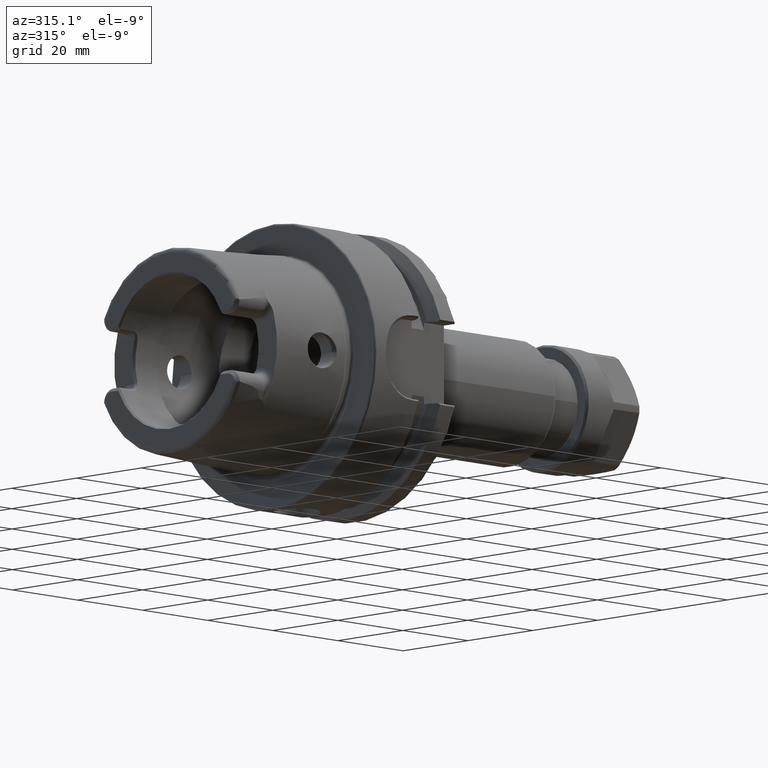
[diagram: clean part render]
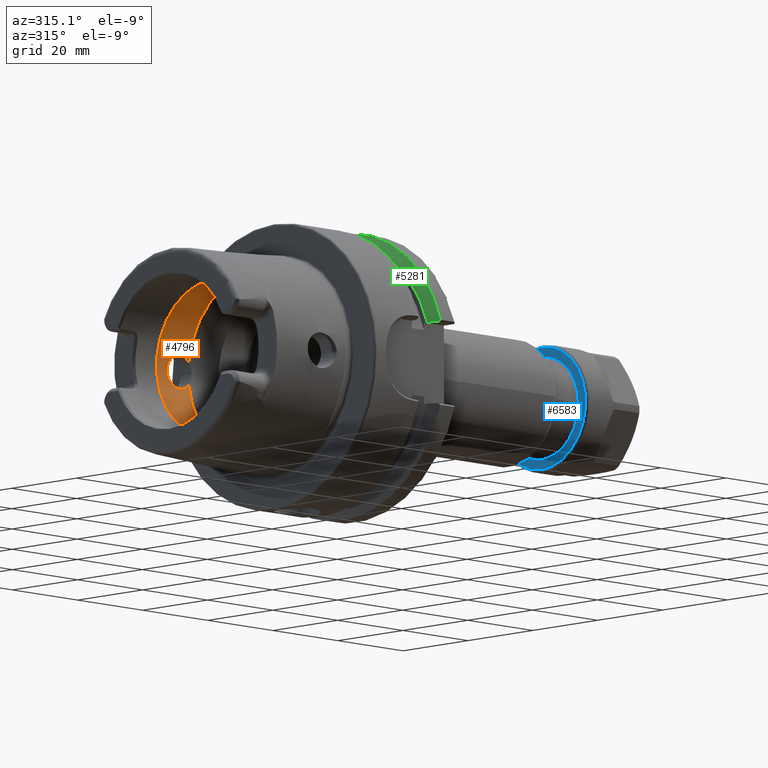
[diagram: same view with three faces highlighted in distinct colors, each labeled with its STEP entity id]
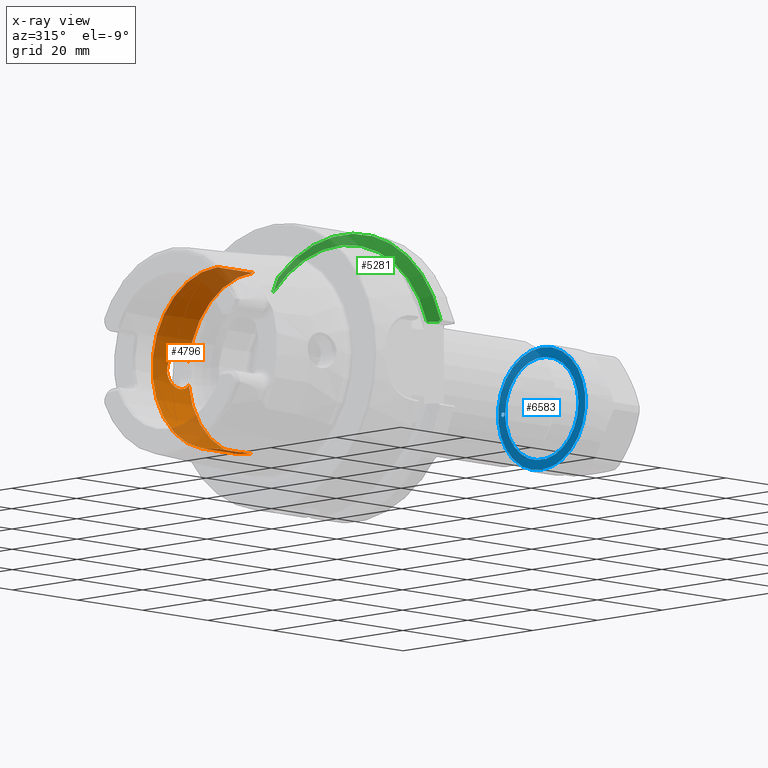
[diagram: x-ray of the same camera — body ghosted, the three highlighted faces saturated]
A machine part, auxiliary view with three faces highlighted in distinct colors.
The next image is the same camera in x-ray (body ghosted, the three faces saturated) — at least one of them is partly hidden behind the body in this view.
Their STEP definitions:

[orange] entity #4796 — the highlighted cylindrical surface (partial cylindrical patch) has radius 20 mm, axis along (1, 0, 0).
#1645=CARTESIAN_POINT('',(-6.25E0,1.983683432405E1,-2.549509756796E0));
#1646=CARTESIAN_POINT('',(-6.412191671914E0,1.981434953185E1,
-2.724455977957E0));
#1647=CARTESIAN_POINT('',(-6.766666943100E0,1.976875762141E1,
-3.043454715097E0));
#1648=CARTESIAN_POINT('',(-7.437180179155E0,1.970320763632E1,
-3.437875137066E0));
#1649=CARTESIAN_POINT('',(-8.152615155945E0,1.965899719827E1,
-3.678535610242E0));
#1650=CARTESIAN_POINT('',(-8.900918704725E0,1.964074638735E1,
-3.773605536312E0));
#1651=CARTESIAN_POINT('',(-9.648077996238E0,1.965127390332E1,
-3.719156918016E0));
#1652=CARTESIAN_POINT('',(-1.038038810013E1,1.968954191163E1,
-3.513816003610E0));
#1653=CARTESIAN_POINT('',(-1.104728420276E1,1.974836623932E1,
-3.171516966440E0));
#1654=CARTESIAN_POINT('',(-1.163720877289E1,1.981912055182E1,
-2.701059301974E0));
#1655=CARTESIAN_POINT('',(-1.211811501855E1,1.988977225264E1,
-2.127439296534E0));
#1656=CARTESIAN_POINT('',(-1.247852871287E1,1.995020677058E1,
-1.467074167353E0));
#1657=CARTESIAN_POINT('',(-1.270027037274E1,1.999058724974E1,
-7.457418086290E-1));
#1658=CARTESIAN_POINT('',(-1.275E1,1.99999999E1,-2.521187766344E-1));
#1659=CARTESIAN_POINT('',(-1.275E1,1.99999999E1,0.E0));
#1661=CARTESIAN_POINT('',(-6.25E0,0.E0,0.E0));
#1662=DIRECTION('',(1.E0,0.E0,0.E0));
#1663=DIRECTION('',(0.E0,0.E0,-1.E0));
#1664=AXIS2_PLACEMENT_3D('',#1661,#1662,#1663);
#1666=CARTESIAN_POINT('',(-6.25E0,0.E0,0.E0));
#1667=DIRECTION('',(1.E0,0.E0,0.E0));
#1668=DIRECTION('',(0.E0,9.918417211620E-1,1.274754884772E-1));
#1669=AXIS2_PLACEMENT_3D('',#1666,#1667,#1668);
#1671=CARTESIAN_POINT('',(-1.275E1,1.99999999E1,0.E0));
#1672=CARTESIAN_POINT('',(-1.275E1,1.99999999E1,2.522745778973E-1));
#1673=CARTESIAN_POINT('',(-1.270020630643E1,1.999057491733E1,
7.461193017548E-1));
#1674=CARTESIAN_POINT('',(-1.247836669408E1,1.995017889764E1,1.467430797841E0));
#1675=CARTESIAN_POINT('',(-1.211796760706E1,1.988974717851E1,2.127673636508E0));
#1676=CARTESIAN_POINT('',(-1.163695787067E1,1.981909255207E1,2.701235140528E0));
#1677=CARTESIAN_POINT('',(-1.104802572213E1,1.974844919870E1,3.170978871947E0));
#1678=CARTESIAN_POINT('',(-1.038159781224E1,1.968964243516E1,3.513257168434E0));
#1679=CARTESIAN_POINT('',(-9.650893064953E0,1.965137298095E1,3.718634952608E0));
#1680=CARTESIAN_POINT('',(-8.903372385629E0,1.964074066829E1,3.773638840027E0));
#1681=CARTESIAN_POINT('',(-8.156943078686E0,1.965883652666E1,3.679367034961E0));
#1682=CARTESIAN_POINT('',(-7.441915523316E0,1.970280955621E1,3.440146438148E0));
#1683=CARTESIAN_POINT('',(-6.768171513649E0,1.976855794453E1,3.044812140947E0));
#1684=CARTESIAN_POINT('',(-6.412706435352E0,1.981427816969E1,2.725011221744E0));
#1685=CARTESIAN_POINT('',(-6.25E0,1.983683432405E1,2.549509756796E0));
#1724=DIRECTION('',(-1.E0,0.E0,0.E0));
#1725=VECTOR('',#1724,1.101397465395E1);
#1726=CARTESIAN_POINT('',(-6.25E0,0.E0,1.99999999E1));
#1727=LINE('',#1726,#1725);
#1728=DIRECTION('',(-1.E0,0.E0,0.E0));
#1729=VECTOR('',#1728,1.101397465395E1);
#1730=CARTESIAN_POINT('',(-6.25E0,0.E0,-1.99999999E1));
#1731=LINE('',#1730,#1729);
#1776=CARTESIAN_POINT('',(-1.726397465395E1,0.E0,0.E0));
#1777=DIRECTION('',(1.E0,0.E0,0.E0));
#1778=DIRECTION('',(0.E0,0.E0,-1.E0));
#1779=AXIS2_PLACEMENT_3D('',#1776,#1777,#1778);
#2406=CARTESIAN_POINT('',(-1.726397465395E1,0.E0,-1.99999999E1));
#2407=CARTESIAN_POINT('',(-1.726397465395E1,0.E0,1.99999999E1));
#2408=VERTEX_POINT('',#2406);
#2409=VERTEX_POINT('',#2407);
#2418=CARTESIAN_POINT('',(-6.25E0,0.E0,-1.99999999E1));
#2419=VERTEX_POINT('',#2418);
#2420=CARTESIAN_POINT('',(-6.25E0,0.E0,1.99999999E1));
#2421=VERTEX_POINT('',#2420);
#2689=VERTEX_POINT('',#1645);
#2690=VERTEX_POINT('',#1659);
#2691=VERTEX_POINT('',#1685);
#4779=CARTESIAN_POINT('',(0.E0,0.E0,0.E0));
#4780=DIRECTION('',(1.E0,0.E0,0.E0));
#4781=DIRECTION('',(0.E0,0.E0,1.E0));
#4782=AXIS2_PLACEMENT_3D('',#4779,#4780,#4781);
#4783=CYLINDRICAL_SURFACE('',#4782,1.99999999E1);
#4784=ORIENTED_EDGE('',*,*,#4739,.F.);
#4785=ORIENTED_EDGE('',*,*,#4774,.F.);
#4787=ORIENTED_EDGE('',*,*,#4786,.T.);
#4789=ORIENTED_EDGE('',*,*,#4788,.T.);
#4791=ORIENTED_EDGE('',*,*,#4790,.F.);
#4792=ORIENTED_EDGE('',*,*,#4767,.F.);
#4793=ORIENTED_EDGE('',*,*,#4677,.F.);
#4794=EDGE_LOOP('',(#4784,#4785,#4787,#4789,#4791,#4792,#4793));
#4795=FACE_OUTER_BOUND('',#4794,.F.);
#4796=ADVANCED_FACE('',(#4795),#4783,.F.);
#1660=B_SPLINE_CURVE_WITH_KNOTS('',3,(#1645,#1646,#1647,#1648,#1649,#1650,#1651,
#1652,#1653,#1654,#1655,#1656,#1657,#1658,#1659),.UNSPECIFIED.,.F.,.F.,(4,1,1,1,
1,1,1,1,1,1,1,1,4),(0.E0,8.333333333333E-2,1.666666666667E-1,2.5E-1,
3.333333333333E-1,4.166666666667E-1,5.E-1,5.833333333333E-1,6.666666666667E-1,
7.5E-1,8.333333333333E-1,9.166666666667E-1,1.E0),.UNSPECIFIED.);
#1665=CIRCLE('',#1664,1.99999999E1);
#1670=CIRCLE('',#1669,1.99999999E1);
#1686=B_SPLINE_CURVE_WITH_KNOTS('',3,(#1671,#1672,#1673,#1674,#1675,#1676,#1677,
#1678,#1679,#1680,#1681,#1682,#1683,#1684,#1685),.UNSPECIFIED.,.F.,.F.,(4,1,1,1,
1,1,1,1,1,1,1,1,4),(0.E0,8.333333333333E-2,1.666666666667E-1,2.5E-1,
3.333333333333E-1,4.166666666667E-1,5.E-1,5.833333333333E-1,6.666666666667E-1,
7.5E-1,8.333333333333E-1,9.166666666667E-1,1.E0),.UNSPECIFIED.);
#1780=CIRCLE('',#1779,1.99999999E1);
#4677=EDGE_CURVE('',#2690,#2691,#1686,.T.);
#4739=EDGE_CURVE('',#2689,#2690,#1660,.T.);
#4767=EDGE_CURVE('',#2691,#2421,#1670,.T.);
#4774=EDGE_CURVE('',#2419,#2689,#1665,.T.);
#4786=EDGE_CURVE('',#2419,#2408,#1731,.T.);
#4788=EDGE_CURVE('',#2408,#2409,#1780,.T.);
#4790=EDGE_CURVE('',#2421,#2409,#1727,.T.);

[blue] entity #6583 — the highlighted planar face has unit normal (1, 0, 0).
#5916=CARTESIAN_POINT('',(-8.75E0,1.2E1,0.E0));
#5917=DIRECTION('',(-1.E0,0.E0,0.E0));
#5918=DIRECTION('',(0.E0,1.E0,0.E0));
#5919=AXIS2_PLACEMENT_3D('',#5916,#5917,#5918);
#5921=CARTESIAN_POINT('',(-8.75E0,1.2E1,0.E0));
#5922=DIRECTION('',(-1.E0,0.E0,0.E0));
#5923=DIRECTION('',(0.E0,-1.E0,0.E0));
#5924=AXIS2_PLACEMENT_3D('',#5921,#5922,#5923);
#5926=CARTESIAN_POINT('',(-8.75E0,0.E0,0.E0));
#5927=DIRECTION('',(1.E0,0.E0,0.E0));
#5928=DIRECTION('',(0.E0,1.E0,0.E0));
#5929=AXIS2_PLACEMENT_3D('',#5926,#5927,#5928);
#5931=CARTESIAN_POINT('',(-8.75E0,0.E0,0.E0));
#5932=DIRECTION('',(1.E0,0.E0,0.E0));
#5933=DIRECTION('',(0.E0,-1.E0,0.E0));
#5934=AXIS2_PLACEMENT_3D('',#5931,#5932,#5933);
#5936=CARTESIAN_POINT('',(-8.75E0,4.367849422928E-14,0.E0));
#5937=DIRECTION('',(-1.E0,0.E0,0.E0));
#5938=DIRECTION('',(0.E0,0.E0,-1.E0));
#5939=AXIS2_PLACEMENT_3D('',#5936,#5937,#5938);
#5941=CARTESIAN_POINT('',(-8.75E0,0.E0,0.E0));
#5942=DIRECTION('',(-1.E0,0.E0,0.E0));
#5943=DIRECTION('',(0.E0,0.E0,1.E0));
#5944=AXIS2_PLACEMENT_3D('',#5941,#5942,#5943);
#6540=CARTESIAN_POINT('',(-8.75E0,1.25E1,0.E0));
#6541=CARTESIAN_POINT('',(-8.75E0,1.15E1,0.E0));
#6542=VERTEX_POINT('',#6540);
#6543=VERTEX_POINT('',#6541);
#6544=CARTESIAN_POINT('',(-8.75E0,1.13E1,0.E0));
#6545=CARTESIAN_POINT('',(-8.75E0,-1.13E1,0.E0));
#6546=VERTEX_POINT('',#6544);
#6547=VERTEX_POINT('',#6545);
#6552=CARTESIAN_POINT('',(-8.75E0,0.E0,-1.35E1));
#6553=CARTESIAN_POINT('',(-8.75E0,0.E0,1.35E1));
#6554=VERTEX_POINT('',#6552);
#6555=VERTEX_POINT('',#6553);
#6560=CARTESIAN_POINT('',(-8.75E0,0.E0,0.E0));
#6561=DIRECTION('',(1.E0,0.E0,0.E0));
#6562=DIRECTION('',(0.E0,0.E0,-1.E0));
#6563=AXIS2_PLACEMENT_3D('',#6560,#6561,#6562);
#6564=PLANE('',#6563);
#6566=ORIENTED_EDGE('',*,*,#6565,.F.);
#6568=ORIENTED_EDGE('',*,*,#6567,.F.);
#6569=EDGE_LOOP('',(#6566,#6568));
#6570=FACE_OUTER_BOUND('',#6569,.F.);
#6572=ORIENTED_EDGE('',*,*,#6571,.F.);
#6574=ORIENTED_EDGE('',*,*,#6573,.F.);
#6575=EDGE_LOOP('',(#6572,#6574));
#6576=FACE_BOUND('',#6575,.F.);
#6578=ORIENTED_EDGE('',*,*,#6577,.T.);
#6580=ORIENTED_EDGE('',*,*,#6579,.T.);
#6581=EDGE_LOOP('',(#6578,#6580));
#6582=FACE_BOUND('',#6581,.F.);
#6583=ADVANCED_FACE('',(#6570,#6576,#6582),#6564,.F.);
#5920=CIRCLE('',#5919,5.E-1);
#5925=CIRCLE('',#5924,5.E-1);
#5930=CIRCLE('',#5929,1.13E1);
#5935=CIRCLE('',#5934,1.13E1);
#5940=CIRCLE('',#5939,1.35E1);
#5945=CIRCLE('',#5944,1.35E1);
#6565=EDGE_CURVE('',#6554,#6555,#5940,.T.);
#6567=EDGE_CURVE('',#6555,#6554,#5945,.T.);
#6571=EDGE_CURVE('',#6546,#6547,#5930,.T.);
#6573=EDGE_CURVE('',#6547,#6546,#5935,.T.);
#6577=EDGE_CURVE('',#6542,#6543,#5920,.T.);
#6579=EDGE_CURVE('',#6543,#6542,#5925,.T.);

[green] entity #5281 — the highlighted conical surface has half-angle 60 deg.
#2077=CARTESIAN_POINT('',(2.137749905409E1,-3.007314630073E1,9.373146300730E0));
#2078=CARTESIAN_POINT('',(2.133222651769E1,-3.001052821082E1,9.310528210818E0));
#2079=CARTESIAN_POINT('',(2.124208332148E1,-2.988571910367E1,9.185719103672E0));
#2080=CARTESIAN_POINT('',(2.115274415399E1,-2.976176404209E1,9.061764042087E0));
#2081=CARTESIAN_POINT('',(2.110827564058E1,-2.97E1,9.E0));
#2083=CARTESIAN_POINT('',(1.9875E1,-2.746035349595E1,9.E0));
#2084=CARTESIAN_POINT('',(2.000815730744E1,-2.770305988737E1,9.E0));
#2085=CARTESIAN_POINT('',(2.027705920850E1,-2.819256428174E1,9.E0));
#2086=CARTESIAN_POINT('',(2.068812000744E1,-2.893903747045E1,9.E0));
#2087=CARTESIAN_POINT('',(2.096736261765E1,-2.944497148241E1,9.E0));
#2088=CARTESIAN_POINT('',(2.110827564058E1,-2.97E1,9.E0));
#2090=CARTESIAN_POINT('',(1.9875E1,0.E0,0.E0));
#2091=DIRECTION('',(-1.E0,0.E0,0.E0));
#2092=DIRECTION('',(0.E0,-9.502643112990E-1,3.114445996827E-1));
#2093=AXIS2_PLACEMENT_3D('',#2090,#2091,#2092);
#2095=CARTESIAN_POINT('',(1.9875E1,2.E1,2.085835597842E1));
#2096=CARTESIAN_POINT('',(2.002730864105E1,2.E1,2.122383865787E1));
#2097=CARTESIAN_POINT('',(2.034159396585E1,2.E1,2.196878900649E1));
#2098=CARTESIAN_POINT('',(2.084187084513E1,2.E1,2.312708230139E1));
#2099=CARTESIAN_POINT('',(2.119561267371E1,2.E1,2.392841370879E1));
#2100=CARTESIAN_POINT('',(2.137749905409E1,2.E1,2.433618704728E1));
#2102=CARTESIAN_POINT('',(2.137749905409E1,0.E0,0.E0));
#2103=DIRECTION('',(1.E0,0.E0,0.E0));
#2104=DIRECTION('',(0.E0,6.349206349206E-1,7.725773665802E-1));
#2105=AXIS2_PLACEMENT_3D('',#2102,#2103,#2104);
#2524=CARTESIAN_POINT('',(1.9875E1,-2.746035349595E1,9.E0));
#2525=VERTEX_POINT('',#2524);
#2546=CARTESIAN_POINT('',(1.9875E1,2.E1,2.085835597842E1));
#2548=VERTEX_POINT('',#2546);
#2552=VERTEX_POINT('',#2100);
#2724=VERTEX_POINT('',#2077);
#2725=VERTEX_POINT('',#2081);
#5267=CARTESIAN_POINT('',(2.062624952704E1,0.E0,0.E0));
#5268=DIRECTION('',(1.E0,0.E0,0.E0));
#5269=DIRECTION('',(0.E0,0.E0,1.E0));
#5270=AXIS2_PLACEMENT_3D('',#5267,#5268,#5269);
#5271=CONICAL_SURFACE('',#5270,3.019879765E1,6.E1);
#5272=ORIENTED_EDGE('',*,*,#5017,.T.);
#5273=ORIENTED_EDGE('',*,*,#5051,.F.);
#5275=ORIENTED_EDGE('',*,*,#5274,.T.);
#5277=ORIENTED_EDGE('',*,*,#5276,.T.);
#5278=ORIENTED_EDGE('',*,*,#3600,.T.);
#5279=EDGE_LOOP('',(#5272,#5273,#5275,#5277,#5278));
#5280=FACE_OUTER_BOUND('',#5279,.F.);
#5281=ADVANCED_FACE('',(#5280),#5271,.T.);
#2082=B_SPLINE_CURVE_WITH_KNOTS('',3,(#2077,#2078,#2079,#2080,#2081),
.UNSPECIFIED.,.F.,.F.,(4,1,4),(0.E0,5.E-1,1.E0),.UNSPECIFIED.);
#2089=B_SPLINE_CURVE_WITH_KNOTS('',3,(#2083,#2084,#2085,#2086,#2087,#2088),
.UNSPECIFIED.,.F.,.F.,(4,1,1,4),(0.E0,3.333333333333E-1,6.666666666667E-1,1.E0),
.UNSPECIFIED.);
#2094=CIRCLE('',#2093,2.88975953E1);
#2101=B_SPLINE_CURVE_WITH_KNOTS('',3,(#2095,#2096,#2097,#2098,#2099,#2100),
.UNSPECIFIED.,.F.,.F.,(4,1,1,4),(0.E0,3.333333333333E-1,6.666666666667E-1,1.E0),
.UNSPECIFIED.);
#2106=CIRCLE('',#2105,3.15E1);
#3600=EDGE_CURVE('',#2552,#2724,#2106,.T.);
#5017=EDGE_CURVE('',#2724,#2725,#2082,.T.);
#5051=EDGE_CURVE('',#2525,#2725,#2089,.T.);
#5274=EDGE_CURVE('',#2525,#2548,#2094,.T.);
#5276=EDGE_CURVE('',#2548,#2552,#2101,.T.);